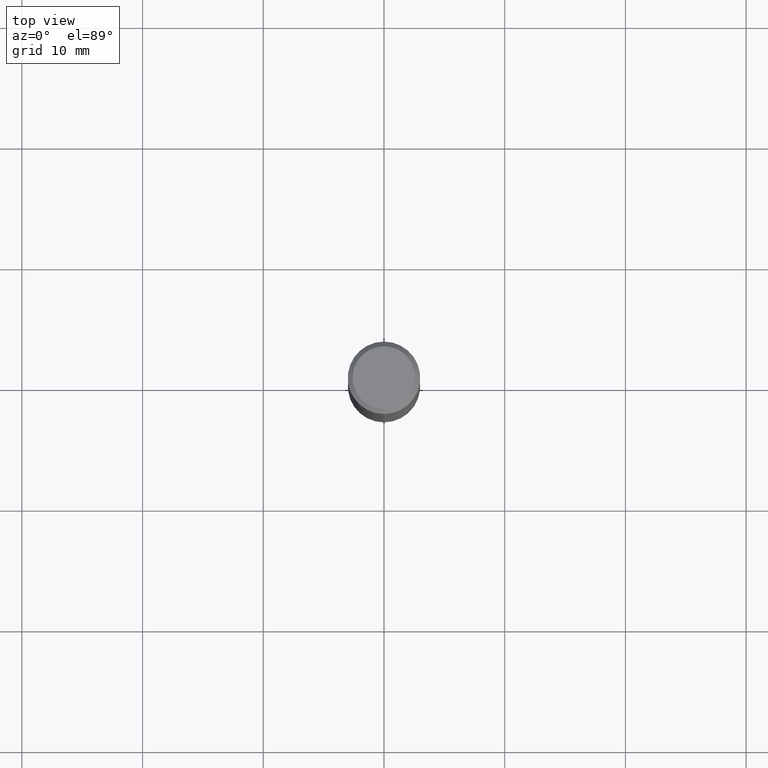
[diagram: clean part render]
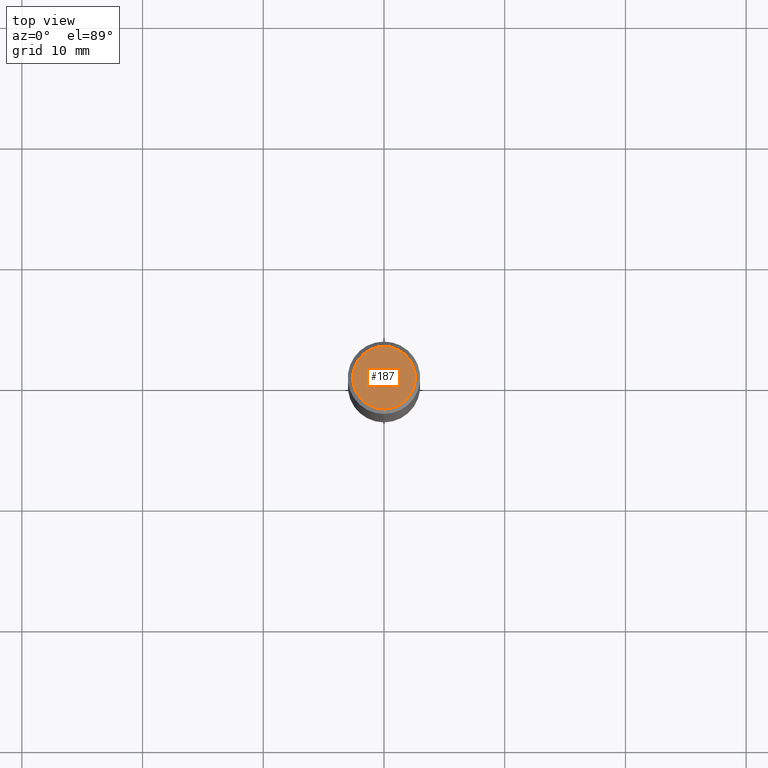
[diagram: same view with one face highlighted and labeled with its STEP entity id]
A machine part, top view. The second image highlights one B-rep face of the part: STEP entity #187.
In plain terms, the highlighted planar face has unit normal (-0, 0, 1).
Its self-contained STEP definition (entity closure, byte-faithful):
#149=VERTEX_POINT('',#359);
#169=EDGE_CURVE('',#149,#307,#380,.T.);
#187=ADVANCED_FACE('',(#399),#400,.T.);
#229=EDGE_CURVE('',#307,#149,#451,.T.);
#307=VERTEX_POINT('',#536);
#359=CARTESIAN_POINT('',(3.18397651993818E-016,-2.6,0.0));
#380=CIRCLE('',#612,2.6);
#399=FACE_OUTER_BOUND('',#637,.T.);
#400=PLANE('',#638);
#451=CIRCLE('',#704,2.6);
#536=CARTESIAN_POINT('',(0.0,2.6,0.0));
#612=AXIS2_PLACEMENT_3D('',#884,#885,#886);
#637=EDGE_LOOP('',(#904,#905));
#638=AXIS2_PLACEMENT_3D('',#906,#907,#908);
#704=AXIS2_PLACEMENT_3D('',#984,#985,#986);
#884=CARTESIAN_POINT('',(0.0,0.0,0.0));
#885=DIRECTION('',(0.0,0.0,-1.0));
#886=DIRECTION('',(0.0,1.0,0.0));
#904=ORIENTED_EDGE('',*,*,#229,.F.);
#905=ORIENTED_EDGE('',*,*,#169,.F.);
#906=CARTESIAN_POINT('',(0.0,1.3,0.0));
#907=DIRECTION('',(-0.0,0.0,1.0));
#908=DIRECTION('',(0.0,-1.0,0.0));
#984=CARTESIAN_POINT('',(0.0,0.0,0.0));
#985=DIRECTION('',(0.0,0.0,-1.0));
#986=DIRECTION('',(0.0,1.0,0.0));